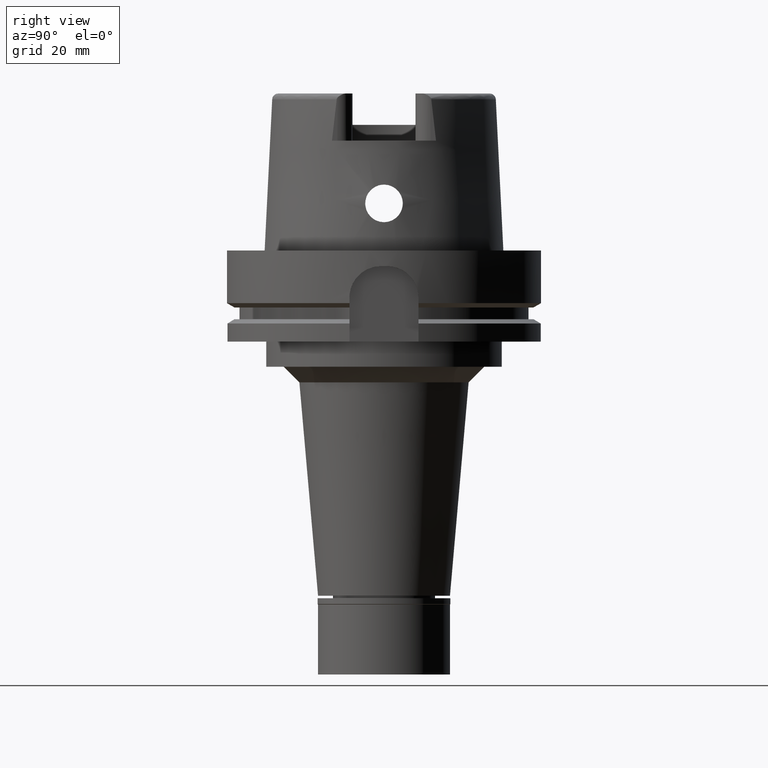
[diagram: clean part render]
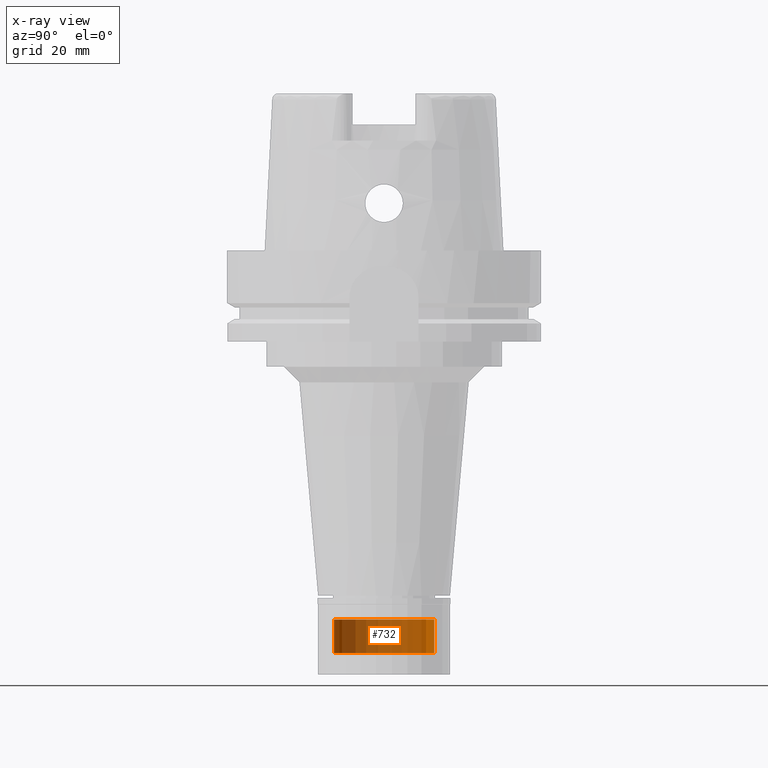
[diagram: x-ray — body ghosted, one internal face saturated and labeled with its STEP entity id]
A machine part, right view, then the same camera in x-ray: the body is ghosted and one INTERNAL B-rep face — a face not visible from any outside direction — is saturated and labeled: STEP entity #732.
In plain terms, the highlighted cylindrical surface (partial cylindrical patch) has radius 16 mm, axis along (0, 0, -1).
Its self-contained STEP definition (entity closure, byte-faithful):
#162 = CARTESIAN_POINT ( 'NONE',  ( 0.0000000000000000000, 16.00000000000000000, -17.50000000000000000 ) ) ;
#520 = FACE_OUTER_BOUND ( 'NONE', #787, .T. ) ;
#540 = DIRECTION ( 'NONE',  ( 0.0000000000000000000, 1.000000000000000000, 0.0000000000000000000 ) ) ;
#541 = CYLINDRICAL_SURFACE ( 'NONE', #1922, 16.00000000000000000 ) ;
#670 = EDGE_CURVE ( 'NONE', #4947, #3968, #5251, .T. ) ;
#681 = ORIENTED_EDGE ( 'NONE', *, *, #1718, .T. ) ;
#718 = VERTEX_POINT ( 'NONE', #4436 ) ;
#732 = ADVANCED_FACE ( 'NONE', ( #520 ), #541, .F. ) ;
#787 = EDGE_LOOP ( 'NONE', ( #681, #5047, #2329, #2566 ) ) ;
#899 = DIRECTION ( 'NONE',  ( 0.0000000000000000000, -1.000000000000000000, 0.0000000000000000000 ) ) ;
#924 = DIRECTION ( 'NONE',  ( 0.0000000000000000000, 0.0000000000000000000, -1.000000000000000000 ) ) ;
#1018 = CARTESIAN_POINT ( 'NONE',  ( 0.0000000000000000000, -16.00000000000000000, -17.50000000000000000 ) ) ;
#1298 = AXIS2_PLACEMENT_3D ( 'NONE', #3470, #924, #899 ) ;
#1342 = DIRECTION ( 'NONE',  ( 0.0000000000000000000, 0.0000000000000000000, 1.000000000000000000 ) ) ;
#1419 = DIRECTION ( 'NONE',  ( 0.0000000000000000000, 0.0000000000000000000, 1.000000000000000000 ) ) ;
#1551 = CARTESIAN_POINT ( 'NONE',  ( 0.0000000000000000000, 0.0000000000000000000, 0.0000000000000000000 ) ) ;
#1718 = EDGE_CURVE ( 'NONE', #3968, #718, #5464, .T. ) ;
#1922 = AXIS2_PLACEMENT_3D ( 'NONE', #1551, #4124, #5021 ) ;
#2329 = ORIENTED_EDGE ( 'NONE', *, *, #4873, .T. ) ;
#2341 = LINE ( 'NONE', #1018, #2357 ) ;
#2357 = VECTOR ( 'NONE', #3540, 1000.000000000000000 ) ;
#2457 = CIRCLE ( 'NONE', #1298, 16.00000000000000000 ) ;
#2566 = ORIENTED_EDGE ( 'NONE', *, *, #670, .T. ) ;
#2912 = VECTOR ( 'NONE', #1342, 1000.000000000000000 ) ;
#3470 = CARTESIAN_POINT ( 'NONE',  ( 0.0000000000000000000, 0.0000000000000000000, -17.50000000000000000 ) ) ;
#3514 = CARTESIAN_POINT ( 'NONE',  ( 0.0000000000000000000, -16.00000000000000000, -17.50000000000000000 ) ) ;
#3540 = DIRECTION ( 'NONE',  ( 0.0000000000000000000, 0.0000000000000000000, 1.000000000000000000 ) ) ;
#3968 = VERTEX_POINT ( 'NONE', #4975 ) ;
#4124 = DIRECTION ( 'NONE',  ( 0.0000000000000000000, 0.0000000000000000000, -1.000000000000000000 ) ) ;
#4436 = CARTESIAN_POINT ( 'NONE',  ( 0.0000000000000000000, -16.00000000000000000, -6.799999999999999822 ) ) ;
#4653 = AXIS2_PLACEMENT_3D ( 'NONE', #5355, #1419, #540 ) ;
#4755 = CARTESIAN_POINT ( 'NONE',  ( 0.0000000000000000000, 16.00000000000000000, -17.50000000000000000 ) ) ;
#4873 = EDGE_CURVE ( 'NONE', #5307, #4947, #2457, .T. ) ;
#4947 = VERTEX_POINT ( 'NONE', #4755 ) ;
#4975 = CARTESIAN_POINT ( 'NONE',  ( 0.0000000000000000000, 16.00000000000000000, -6.799999999999999822 ) ) ;
#5021 = DIRECTION ( 'NONE',  ( 0.0000000000000000000, -1.000000000000000000, 0.0000000000000000000 ) ) ;
#5047 = ORIENTED_EDGE ( 'NONE', *, *, #5463, .F. ) ;
#5251 = LINE ( 'NONE', #162, #2912 ) ;
#5307 = VERTEX_POINT ( 'NONE', #3514 ) ;
#5355 = CARTESIAN_POINT ( 'NONE',  ( 0.0000000000000000000, 0.0000000000000000000, -6.799999999999999822 ) ) ;
#5463 = EDGE_CURVE ( 'NONE', #5307, #718, #2341, .T. ) ;
#5464 = CIRCLE ( 'NONE', #4653, 16.00000000000000000 ) ;